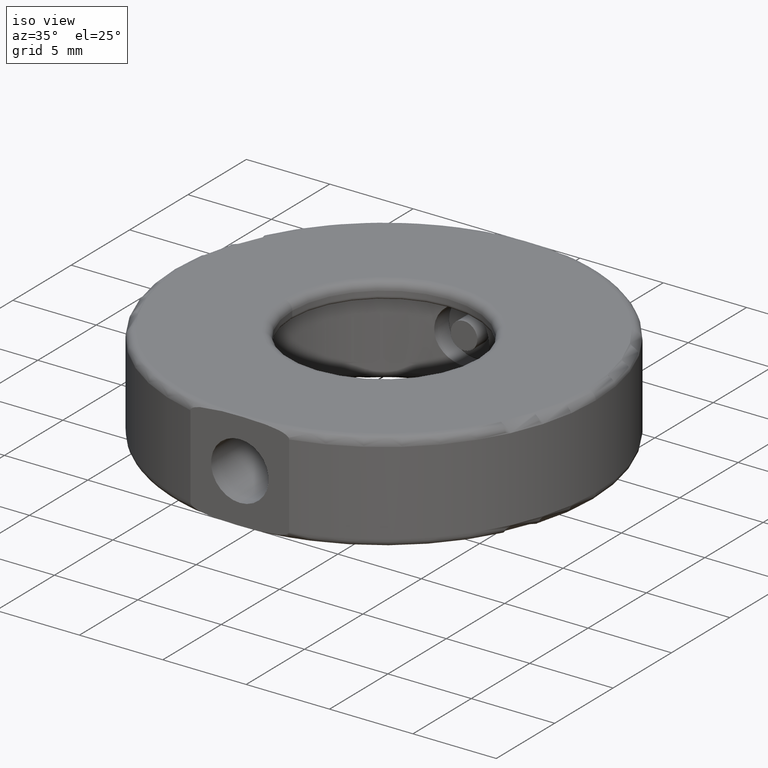
[diagram: clean part render]
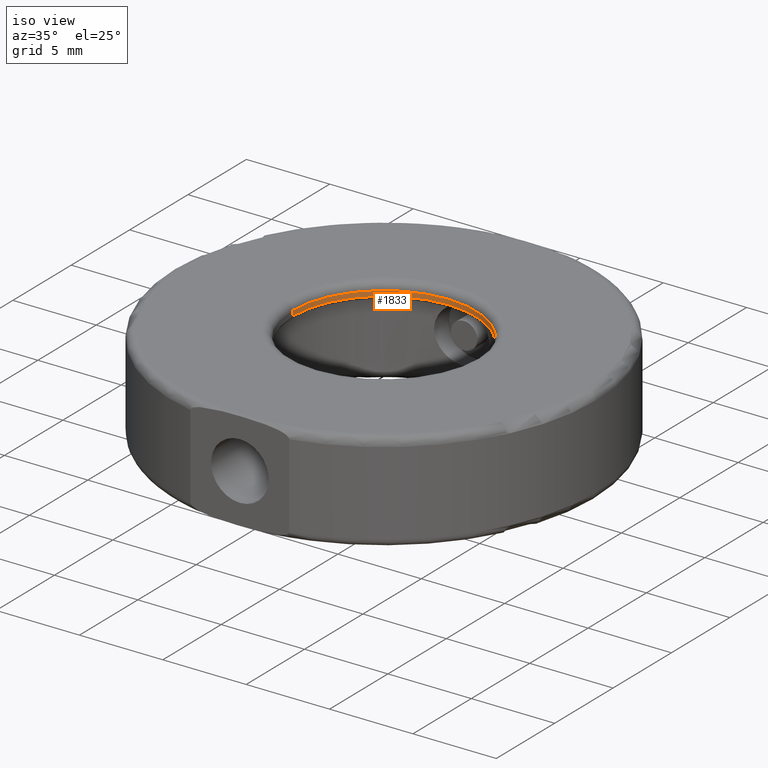
[diagram: same view with one face highlighted and labeled with its STEP entity id]
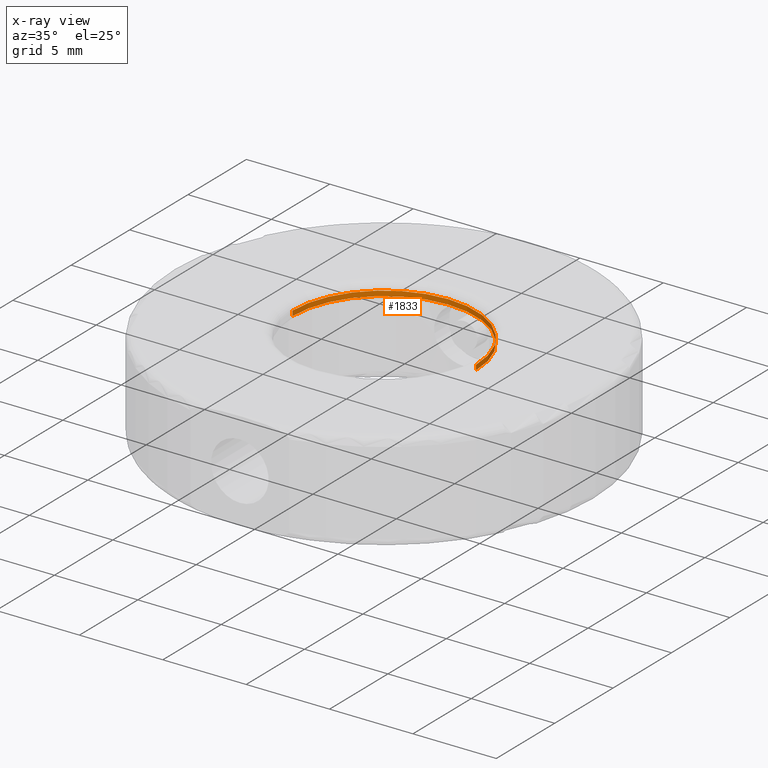
[diagram: x-ray of the same camera — body ghosted, the highlighted face saturated]
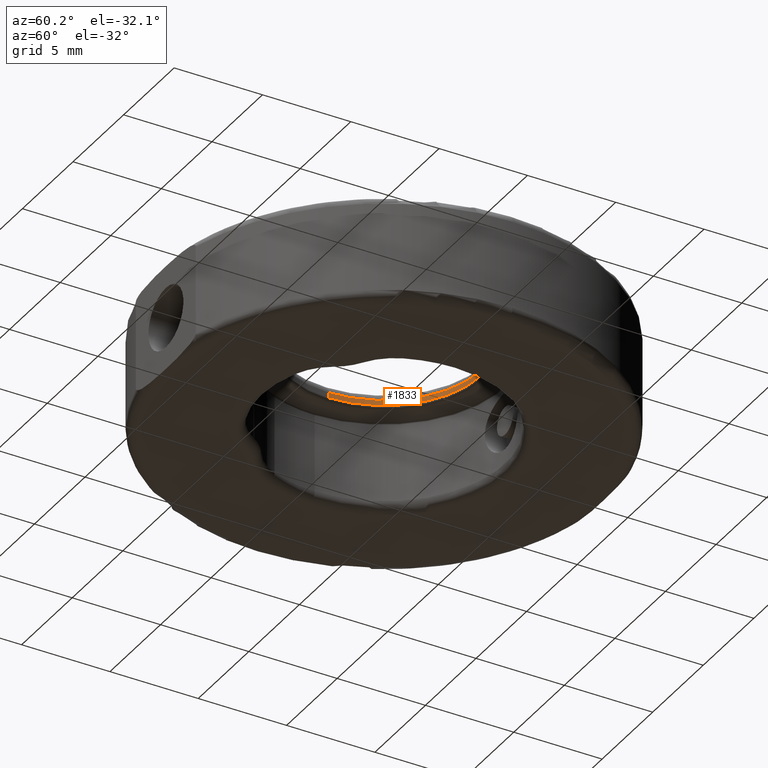
[diagram: same view with one face highlighted and labeled with its STEP entity id]
A machine part, iso view. The second image highlights one B-rep face of the part: STEP entity #1833.
The next image is the same camera in x-ray: the body ghosted, the highlighted face saturated — about 0% of this face is hidden behind the body in this view.
A second angle (auxiliary view) of the same face is appended — the face is thin or edge-on in the first view.
In plain terms, the highlighted cylindrical surface (partial cylindrical patch) has radius 5.5 mm, axis along (-0, -0, -1).
Its self-contained STEP definition (entity closure, byte-faithful):
#67 = LINE ( 'NONE', #2198, #1425 ) ;
#232 = EDGE_CURVE ( 'NONE', #1728, #1734, #67, .T. ) ;
#284 = FACE_OUTER_BOUND ( 'NONE', #1121, .T. ) ;
#300 = ORIENTED_EDGE ( 'NONE', *, *, #232, .T. ) ;
#331 = DIRECTION ( 'NONE',  ( 1.000000000000000000, 0.0000000000000000000, 0.0000000000000000000 ) ) ;
#338 = LINE ( 'NONE', #2300, #1823 ) ;
#550 = CIRCLE ( 'NONE', #791, 5.500000000000000000 ) ;
#649 = AXIS2_PLACEMENT_3D ( 'NONE', #1820, #1827, #331 ) ;
#678 = AXIS2_PLACEMENT_3D ( 'NONE', #1713, #1125, #2094 ) ;
#733 = CARTESIAN_POINT ( 'NONE',  ( -5.630782381938663800, 1.275128223901953000, 2.499999999999997300 ) ) ;
#791 = AXIS2_PLACEMENT_3D ( 'NONE', #2008, #2213, #1672 ) ;
#861 = DIRECTION ( 'NONE',  ( -0.0000000000000000000, -0.0000000000000000000, -1.000000000000000000 ) ) ;
#995 = VERTEX_POINT ( 'NONE', #1210 ) ;
#1080 = DIRECTION ( 'NONE',  ( -0.0000000000000000000, -0.0000000000000000000, -1.000000000000000000 ) ) ;
#1121 = EDGE_LOOP ( 'NONE', ( #1274, #1323, #300, #1986 ) ) ;
#1125 = DIRECTION ( 'NONE',  ( -0.0000000000000000000, -0.0000000000000000000, -1.000000000000000000 ) ) ;
#1210 = CARTESIAN_POINT ( 'NONE',  ( 5.369217618061335400, 1.275128223901953500, 2.199999999999997500 ) ) ;
#1274 = ORIENTED_EDGE ( 'NONE', *, *, #1991, .F. ) ;
#1323 = ORIENTED_EDGE ( 'NONE', *, *, #1724, .T. ) ;
#1385 = CIRCLE ( 'NONE', #649, 5.500000000000000000 ) ;
#1425 = VECTOR ( 'NONE', #1080, 1000.000000000000000 ) ;
#1672 = DIRECTION ( 'NONE',  ( 1.000000000000000000, 0.0000000000000000000, 0.0000000000000000000 ) ) ;
#1677 = VERTEX_POINT ( 'NONE', #2193 ) ;
#1713 = CARTESIAN_POINT ( 'NONE',  ( -0.1307823819386641500, 1.275128223901953000, 2.999999999999997800 ) ) ;
#1716 = CYLINDRICAL_SURFACE ( 'NONE', #678, 5.500000000000000000 ) ;
#1724 = EDGE_CURVE ( 'NONE', #1677, #1728, #550, .T. ) ;
#1728 = VERTEX_POINT ( 'NONE', #733 ) ;
#1734 = VERTEX_POINT ( 'NONE', #2025 ) ;
#1820 = CARTESIAN_POINT ( 'NONE',  ( -0.1307823819386641500, 1.275128223901953000, 2.199999999999997500 ) ) ;
#1823 = VECTOR ( 'NONE', #861, 1000.000000000000000 ) ;
#1827 = DIRECTION ( 'NONE',  ( 0.0000000000000000000, -0.0000000000000000000, -1.000000000000000000 ) ) ;
#1833 = ADVANCED_FACE ( 'NONE', ( #284 ), #1716, .F. ) ;
#1986 = ORIENTED_EDGE ( 'NONE', *, *, #2074, .T. ) ;
#1991 = EDGE_CURVE ( 'NONE', #1677, #995, #338, .T. ) ;
#2008 = CARTESIAN_POINT ( 'NONE',  ( -0.1307823819386641500, 1.275128223901953000, 2.499999999999997300 ) ) ;
#2025 = CARTESIAN_POINT ( 'NONE',  ( -5.630782381938663800, 1.275128223901953000, 2.199999999999997500 ) ) ;
#2074 = EDGE_CURVE ( 'NONE', #1734, #995, #1385, .T. ) ;
#2094 = DIRECTION ( 'NONE',  ( -1.000000000000000000, 0.0000000000000000000, 0.0000000000000000000 ) ) ;
#2193 = CARTESIAN_POINT ( 'NONE',  ( 5.369217618061335400, 1.275128223901953500, 2.499999999999997300 ) ) ;
#2198 = CARTESIAN_POINT ( 'NONE',  ( -5.630782381938663800, 1.275128223901953000, 2.999999999999997800 ) ) ;
#2213 = DIRECTION ( 'NONE',  ( -0.0000000000000000000, 0.0000000000000000000, 1.000000000000000000 ) ) ;
#2300 = CARTESIAN_POINT ( 'NONE',  ( 5.369217618061335400, 1.275128223901953500, 2.999999999999997800 ) ) ;